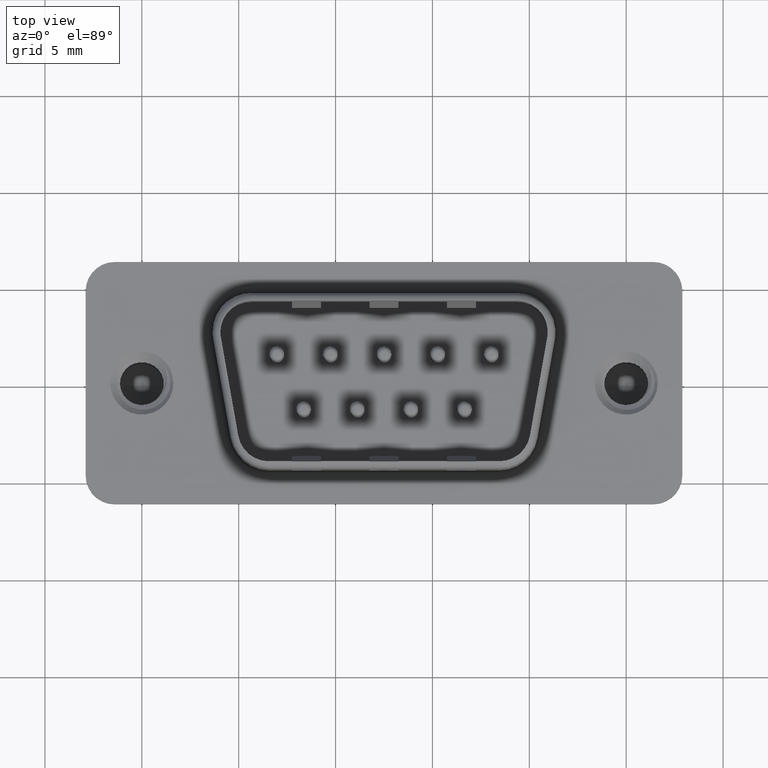
[diagram: clean part render]
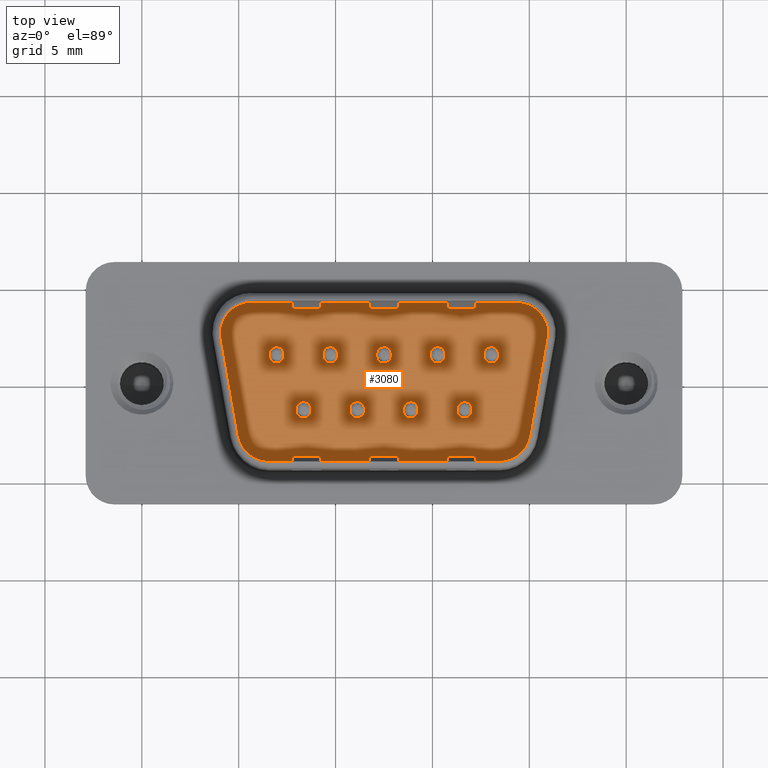
[diagram: same view with one face highlighted and labeled with its STEP entity id]
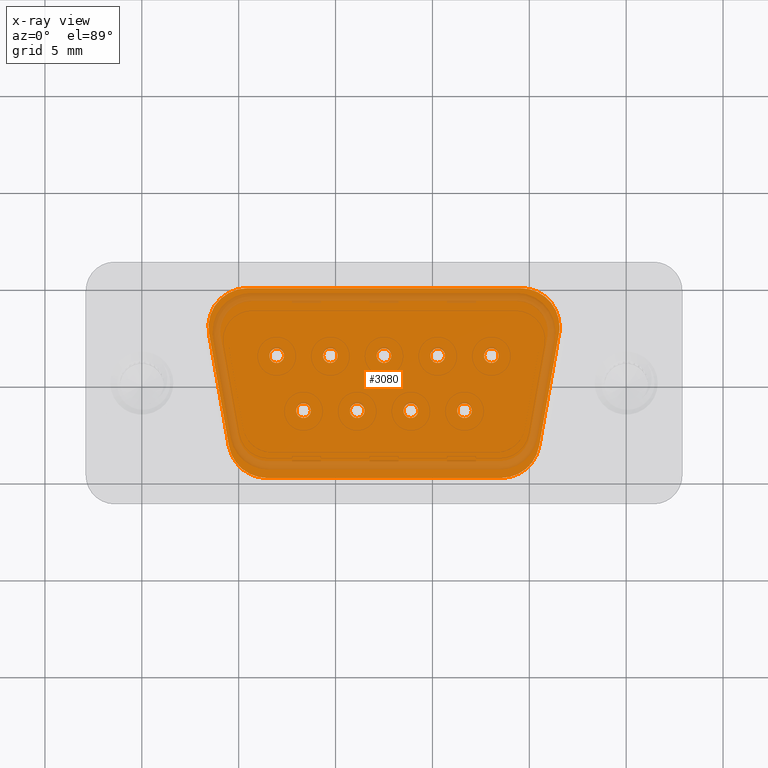
[diagram: x-ray of the same camera — body ghosted, the highlighted face saturated]
A machine part, top view. The second image highlights one B-rep face of the part: STEP entity #3080.
The next image is the same camera in x-ray: the body ghosted, the highlighted face saturated — about 13% of this face is hidden behind the body in this view.
In plain terms, the highlighted planar face has unit normal (0, 0, 1).
Its self-contained STEP definition (entity closure, byte-faithful):
#4 = VECTOR ( 'NONE', #262, 1000.000000000000000 ) ;
#6 = DIRECTION ( 'NONE',  ( -1.000000000000000000, 0.0000000000000000000, 0.0000000000000000000 ) ) ;
#20 = VERTEX_POINT ( 'NONE', #11100 ) ;
#163 = CARTESIAN_POINT ( 'NONE',  ( 21.53364394105523871, 2.552703644666141525, 0.0000000000000000000 ) ) ;
#233 = CARTESIAN_POINT ( 'NONE',  ( 11.49000000000000199, -1.424999999999995381, 0.0000000000000000000 ) ) ;
#262 = DIRECTION ( 'NONE',  ( 1.000000000000000000, 1.435712762696901416E-16, 0.0000000000000000000 ) ) ;
#325 = CARTESIAN_POINT ( 'NONE',  ( 18.03999999999999915, 1.415000000000004254, 0.0000000000000000000 ) ) ;
#333 = EDGE_LOOP ( 'NONE', ( #6587, #13192 ) ) ;
#340 = ORIENTED_EDGE ( 'NONE', *, *, #5016, .T. ) ;
#351 = ORIENTED_EDGE ( 'NONE', *, *, #11033, .F. ) ;
#454 = VERTEX_POINT ( 'NONE', #10677 ) ;
#456 = VERTEX_POINT ( 'NONE', #233 ) ;
#550 = AXIS2_PLACEMENT_3D ( 'NONE', #10307, #14897, #7719 ) ;
#682 = EDGE_CURVE ( 'NONE', #6301, #9457, #3037, .T. ) ;
#695 = CARTESIAN_POINT ( 'NONE',  ( 9.355000000000000426, 1.415000000000004254, 0.0000000000000000000 ) ) ;
#723 = DIRECTION ( 'NONE',  ( 0.0000000000000000000, 0.0000000000000000000, 1.000000000000000000 ) ) ;
#820 = CARTESIAN_POINT ( 'NONE',  ( 5.435971564969178438, 4.900000000000002132, 0.0000000000000000000 ) ) ;
#878 = DIRECTION ( 'NONE',  ( 1.000000000000000000, 0.0000000000000000000, -0.0000000000000000000 ) ) ;
#933 = VERTEX_POINT ( 'NONE', #14063 ) ;
#1074 = CARTESIAN_POINT ( 'NONE',  ( 12.87500000000000178, 1.415000000000004254, 0.0000000000000000000 ) ) ;
#1093 = ORIENTED_EDGE ( 'NONE', *, *, #7700, .F. ) ;
#1164 = CARTESIAN_POINT ( 'NONE',  ( 16.65500000000000469, -1.424999999999995381, 0.0000000000000000000 ) ) ;
#1195 = EDGE_CURVE ( 'NONE', #13666, #14032, #12483, .T. ) ;
#1222 = VERTEX_POINT ( 'NONE', #1236 ) ;
#1236 = CARTESIAN_POINT ( 'NONE',  ( 4.489052547053867137, -3.247296355333864959, 0.0000000000000000000 ) ) ;
#1301 = AXIS2_PLACEMENT_3D ( 'NONE', #9402, #5963, #9470 ) ;
#1355 = VERTEX_POINT ( 'NONE', #5113 ) ;
#1361 = EDGE_CURVE ( 'NONE', #9457, #6301, #13541, .T. ) ;
#1474 = AXIS2_PLACEMENT_3D ( 'NONE', #11156, #9935, #7651 ) ;
#1480 = EDGE_CURVE ( 'NONE', #6226, #454, #11102, .T. ) ;
#1527 = EDGE_LOOP ( 'NONE', ( #4411, #2484 ) ) ;
#1541 = AXIS2_PLACEMENT_3D ( 'NONE', #12027, #9657, #9588 ) ;
#1562 = EDGE_CURVE ( 'NONE', #12511, #12587, #3774, .T. ) ;
#1572 = DIRECTION ( 'NONE',  ( 1.000000000000000000, 0.0000000000000000000, 0.0000000000000000000 ) ) ;
#1613 = DIRECTION ( 'NONE',  ( 0.1736481776669314969, -0.9848077530122079093, 0.0000000000000000000 ) ) ;
#1782 = CARTESIAN_POINT ( 'NONE',  ( 6.458668053078283400, -2.900000000000002576, 0.0000000000000000000 ) ) ;
#2000 = CIRCLE ( 'NONE', #12476, 0.3750000000000003331 ) ;
#2015 = CIRCLE ( 'NONE', #6861, 0.3750000000000003331 ) ;
#2181 = AXIS2_PLACEMENT_3D ( 'NONE', #10296, #4497, #12656 ) ;
#2223 = CARTESIAN_POINT ( 'NONE',  ( 19.56402843503082067, 2.900000000000004352, 0.0000000000000000000 ) ) ;
#2277 = CIRCLE ( 'NONE', #11311, 0.3750000000000003331 ) ;
#2386 = CIRCLE ( 'NONE', #9945, 0.3750000000000003331 ) ;
#2393 = EDGE_CURVE ( 'NONE', #7326, #4948, #5927, .T. ) ;
#2484 = ORIENTED_EDGE ( 'NONE', *, *, #1195, .F. ) ;
#2567 = CARTESIAN_POINT ( 'NONE',  ( 20.51094745294614086, -3.247296355333861850, 0.0000000000000000000 ) ) ;
#2610 = EDGE_CURVE ( 'NONE', #2883, #7138, #4702, .T. ) ;
#2623 = CARTESIAN_POINT ( 'NONE',  ( 15.27000000000000135, 1.415000000000004254, 0.0000000000000000000 ) ) ;
#2709 = EDGE_LOOP ( 'NONE', ( #1093, #9526 ) ) ;
#2765 = AXIS2_PLACEMENT_3D ( 'NONE', #11170, #723, #878 ) ;
#2883 = VERTEX_POINT ( 'NONE', #5977 ) ;
#2900 = AXIS2_PLACEMENT_3D ( 'NONE', #7209, #5844, #3792 ) ;
#2989 = CARTESIAN_POINT ( 'NONE',  ( 16.28000000000000114, -1.424999999999995381, 0.0000000000000000000 ) ) ;
#3024 = VERTEX_POINT ( 'NONE', #10865 ) ;
#3037 = CIRCLE ( 'NONE', #11551, 0.3750000000000003331 ) ;
#3080 = ADVANCED_FACE ( 'NONE', ( #7254, #11104, #4895, #9570, #14225, #3769, #4979, #14298, #6504, #11327 ), #6662, .T. ) ;
#3132 = EDGE_LOOP ( 'NONE', ( #14317, #3806 ) ) ;
#3225 = AXIS2_PLACEMENT_3D ( 'NONE', #1164, #12976, #5964 ) ;
#3230 = EDGE_CURVE ( 'NONE', #3024, #11733, #13492, .T. ) ;
#3282 = EDGE_CURVE ( 'NONE', #6084, #8965, #7879, .T. ) ;
#3303 = EDGE_CURVE ( 'NONE', #3743, #1355, #11545, .T. ) ;
#3380 = CARTESIAN_POINT ( 'NONE',  ( 18.41499999999999915, 1.415000000000004254, 0.0000000000000000000 ) ) ;
#3381 = ORIENTED_EDGE ( 'NONE', *, *, #682, .F. ) ;
#3496 = EDGE_LOOP ( 'NONE', ( #13286, #13851 ) ) ;
#3551 = DIRECTION ( 'NONE',  ( 0.0000000000000000000, 0.0000000000000000000, 1.000000000000000000 ) ) ;
#3743 = VERTEX_POINT ( 'NONE', #2567 ) ;
#3769 = FACE_BOUND ( 'NONE', #13512, .T. ) ;
#3774 = CIRCLE ( 'NONE', #4259, 0.3750000000000003331 ) ;
#3792 = DIRECTION ( 'NONE',  ( -1.000000000000000000, 0.0000000000000000000, 0.0000000000000000000 ) ) ;
#3806 = ORIENTED_EDGE ( 'NONE', *, *, #9033, .F. ) ;
#4071 = CARTESIAN_POINT ( 'NONE',  ( 12.50000000000000000, 1.415000000000004254, 0.0000000000000000000 ) ) ;
#4130 = DIRECTION ( 'NONE',  ( -1.000000000000000000, 0.0000000000000000000, 0.0000000000000000000 ) ) ;
#4145 = CIRCLE ( 'NONE', #1474, 0.3750000000000003331 ) ;
#4259 = AXIS2_PLACEMENT_3D ( 'NONE', #14705, #6523, #8586 ) ;
#4260 = EDGE_CURVE ( 'NONE', #454, #6226, #4145, .T. ) ;
#4299 = EDGE_CURVE ( 'NONE', #1222, #12633, #6591, .T. ) ;
#4398 = EDGE_CURVE ( 'NONE', #1355, #6064, #14878, .T. ) ;
#4411 = ORIENTED_EDGE ( 'NONE', *, *, #12153, .F. ) ;
#4497 = DIRECTION ( 'NONE',  ( 0.0000000000000000000, 0.0000000000000000000, 1.000000000000000000 ) ) ;
#4546 = EDGE_LOOP ( 'NONE', ( #8946, #351 ) ) ;
#4602 = DIRECTION ( 'NONE',  ( 0.0000000000000000000, 0.0000000000000000000, 1.000000000000000000 ) ) ;
#4702 = CIRCLE ( 'NONE', #6671, 0.3750000000000012212 ) ;
#4709 = CARTESIAN_POINT ( 'NONE',  ( 17.66499999999999915, 1.415000000000004254, 0.0000000000000000000 ) ) ;
#4719 = ORIENTED_EDGE ( 'NONE', *, *, #14456, .T. ) ;
#4801 = DIRECTION ( 'NONE',  ( 0.1736481776669305255, 0.9848077530122081313, -0.0000000000000000000 ) ) ;
#4895 = FACE_BOUND ( 'NONE', #1527, .T. ) ;
#4899 = CIRCLE ( 'NONE', #550, 0.3750000000000003331 ) ;
#4948 = VERTEX_POINT ( 'NONE', #12724 ) ;
#4979 = FACE_BOUND ( 'NONE', #3132, .T. ) ;
#5016 = EDGE_CURVE ( 'NONE', #6064, #14133, #10442, .T. ) ;
#5034 = DIRECTION ( 'NONE',  ( 1.000000000000000000, 0.0000000000000000000, 0.0000000000000000000 ) ) ;
#5079 = ORIENTED_EDGE ( 'NONE', *, *, #1562, .F. ) ;
#5113 = CARTESIAN_POINT ( 'NONE',  ( 21.53364394105523871, 2.552703644666141969, 0.0000000000000000000 ) ) ;
#5157 = DIRECTION ( 'NONE',  ( 1.000000000000000000, 0.0000000000000000000, 0.0000000000000000000 ) ) ;
#5233 = LINE ( 'NONE', #820, #11166 ) ;
#5346 = AXIS2_PLACEMENT_3D ( 'NONE', #5973, #5891, #9189 ) ;
#5356 = CARTESIAN_POINT ( 'NONE',  ( 16.65500000000000469, -1.424999999999995381, 0.0000000000000000000 ) ) ;
#5363 = AXIS2_PLACEMENT_3D ( 'NONE', #2623, #3551, #1572 ) ;
#5371 = EDGE_LOOP ( 'NONE', ( #4719, #11112, #14770, #340, #6015, #11893, #12991, #14816, #6170 ) ) ;
#5424 = EDGE_CURVE ( 'NONE', #7138, #2883, #10213, .T. ) ;
#5587 = ORIENTED_EDGE ( 'NONE', *, *, #6972, .F. ) ;
#5844 = DIRECTION ( 'NONE',  ( 0.0000000000000000000, 0.0000000000000000000, 1.000000000000000000 ) ) ;
#5845 = AXIS2_PLACEMENT_3D ( 'NONE', #1782, #14673, #4130 ) ;
#5891 = DIRECTION ( 'NONE',  ( 0.0000000000000000000, 0.0000000000000000000, 1.000000000000000000 ) ) ;
#5902 = CARTESIAN_POINT ( 'NONE',  ( 6.458668053078278959, -4.900000000000001243, 0.0000000000000000000 ) ) ;
#5927 = CIRCLE ( 'NONE', #12526, 0.3750000000000003331 ) ;
#5963 = DIRECTION ( 'NONE',  ( 0.0000000000000000000, 0.0000000000000000000, 1.000000000000000000 ) ) ;
#5964 = DIRECTION ( 'NONE',  ( 1.000000000000000000, 0.0000000000000000000, 0.0000000000000000000 ) ) ;
#5973 = CARTESIAN_POINT ( 'NONE',  ( 6.960000000000000853, 1.415000000000004254, 0.0000000000000000000 ) ) ;
#5977 = CARTESIAN_POINT ( 'NONE',  ( 6.584999999999999964, 1.415000000000004254, 0.0000000000000000000 ) ) ;
#6015 = ORIENTED_EDGE ( 'NONE', *, *, #7705, .T. ) ;
#6020 = VERTEX_POINT ( 'NONE', #10674 ) ;
#6025 = CARTESIAN_POINT ( 'NONE',  ( 21.56402843503082423, 2.900000000000004352, 0.0000000000000000000 ) ) ;
#6064 = VERTEX_POINT ( 'NONE', #6025 ) ;
#6084 = VERTEX_POINT ( 'NONE', #13117 ) ;
#6118 = EDGE_CURVE ( 'NONE', #11733, #1222, #9767, .T. ) ;
#6165 = DIRECTION ( 'NONE',  ( 0.0000000000000000000, 0.0000000000000000000, 1.000000000000000000 ) ) ;
#6170 = ORIENTED_EDGE ( 'NONE', *, *, #9089, .T. ) ;
#6226 = VERTEX_POINT ( 'NONE', #695 ) ;
#6264 = CARTESIAN_POINT ( 'NONE',  ( 9.730000000000000426, 1.415000000000004254, 0.0000000000000000000 ) ) ;
#6301 = VERTEX_POINT ( 'NONE', #4709 ) ;
#6309 = VERTEX_POINT ( 'NONE', #9447 ) ;
#6487 = DIRECTION ( 'NONE',  ( 0.0000000000000000000, 0.0000000000000000000, 1.000000000000000000 ) ) ;
#6504 = FACE_BOUND ( 'NONE', #333, .T. ) ;
#6523 = DIRECTION ( 'NONE',  ( 0.0000000000000000000, 0.0000000000000000000, 1.000000000000000000 ) ) ;
#6587 = ORIENTED_EDGE ( 'NONE', *, *, #5424, .F. ) ;
#6591 = CIRCLE ( 'NONE', #5845, 2.000000000000000000 ) ;
#6662 = PLANE ( 'NONE',  #2765 ) ;
#6671 = AXIS2_PLACEMENT_3D ( 'NONE', #10966, #6165, #5157 ) ;
#6790 = DIRECTION ( 'NONE',  ( 0.0000000000000000000, 0.0000000000000000000, 1.000000000000000000 ) ) ;
#6799 = CIRCLE ( 'NONE', #2181, 0.3750000000000003331 ) ;
#6861 = AXIS2_PLACEMENT_3D ( 'NONE', #4071, #12242, #8573 ) ;
#6887 = VECTOR ( 'NONE', #4801, 999.9999999999998863 ) ;
#6972 = EDGE_CURVE ( 'NONE', #6020, #456, #6799, .T. ) ;
#7138 = VERTEX_POINT ( 'NONE', #12118 ) ;
#7209 = CARTESIAN_POINT ( 'NONE',  ( 19.56402843503082067, 2.900000000000004352, 0.0000000000000000000 ) ) ;
#7254 = FACE_BOUND ( 'NONE', #10983, .T. ) ;
#7326 = VERTEX_POINT ( 'NONE', #9063 ) ;
#7592 = DIRECTION ( 'NONE',  ( 1.000000000000000000, 0.0000000000000000000, 0.0000000000000000000 ) ) ;
#7651 = DIRECTION ( 'NONE',  ( 1.000000000000000000, 0.0000000000000000000, 0.0000000000000000000 ) ) ;
#7700 = EDGE_CURVE ( 'NONE', #8965, #6084, #2386, .T. ) ;
#7705 = EDGE_CURVE ( 'NONE', #14133, #3024, #5233, .T. ) ;
#7719 = DIRECTION ( 'NONE',  ( 1.000000000000000000, 0.0000000000000000000, 0.0000000000000000000 ) ) ;
#7740 = DIRECTION ( 'NONE',  ( 0.0000000000000000000, 0.0000000000000000000, 1.000000000000000000 ) ) ;
#7816 = CARTESIAN_POINT ( 'NONE',  ( 18.03999999999999915, 1.415000000000004254, 0.0000000000000000000 ) ) ;
#7879 = CIRCLE ( 'NONE', #1301, 0.3750000000000003331 ) ;
#7986 = DIRECTION ( 'NONE',  ( 0.0000000000000000000, 0.0000000000000000000, 1.000000000000000000 ) ) ;
#8102 = CIRCLE ( 'NONE', #1541, 2.000000000000001776 ) ;
#8141 = CARTESIAN_POINT ( 'NONE',  ( 3.466356058944761731, 2.552703644666139304, 0.0000000000000000000 ) ) ;
#8519 = AXIS2_PLACEMENT_3D ( 'NONE', #2223, #11675, #6 ) ;
#8573 = DIRECTION ( 'NONE',  ( 1.000000000000000000, 0.0000000000000000000, 0.0000000000000000000 ) ) ;
#8586 = DIRECTION ( 'NONE',  ( 1.000000000000000000, 0.0000000000000000000, 0.0000000000000000000 ) ) ;
#8710 = DIRECTION ( 'NONE',  ( 0.0000000000000000000, 0.0000000000000000000, 1.000000000000000000 ) ) ;
#8821 = DIRECTION ( 'NONE',  ( 1.000000000000000000, 0.0000000000000000000, 0.0000000000000000000 ) ) ;
#8914 = AXIS2_PLACEMENT_3D ( 'NONE', #325, #8710, #5034 ) ;
#8946 = ORIENTED_EDGE ( 'NONE', *, *, #2393, .F. ) ;
#8958 = CARTESIAN_POINT ( 'NONE',  ( 5.435971564969178438, 2.900000000000002576, 0.0000000000000000000 ) ) ;
#8965 = VERTEX_POINT ( 'NONE', #11571 ) ;
#9033 = EDGE_CURVE ( 'NONE', #6309, #20, #10013, .T. ) ;
#9063 = CARTESIAN_POINT ( 'NONE',  ( 8.720000000000002416, -1.424999999999995381, 0.0000000000000000000 ) ) ;
#9089 = EDGE_CURVE ( 'NONE', #12633, #933, #10629, .T. ) ;
#9189 = DIRECTION ( 'NONE',  ( 1.000000000000000000, 0.0000000000000000000, 0.0000000000000000000 ) ) ;
#9402 = CARTESIAN_POINT ( 'NONE',  ( 13.88500000000000156, -1.424999999999995381, 0.0000000000000000000 ) ) ;
#9447 = CARTESIAN_POINT ( 'NONE',  ( 14.89500000000000668, 1.415000000000004254, 0.0000000000000000000 ) ) ;
#9457 = VERTEX_POINT ( 'NONE', #3380 ) ;
#9470 = DIRECTION ( 'NONE',  ( 1.000000000000000000, 0.0000000000000000000, 0.0000000000000000000 ) ) ;
#9486 = DIRECTION ( 'NONE',  ( 0.0000000000000000000, 0.0000000000000000000, 1.000000000000000000 ) ) ;
#9526 = ORIENTED_EDGE ( 'NONE', *, *, #3282, .F. ) ;
#9570 = FACE_BOUND ( 'NONE', #4546, .T. ) ;
#9588 = DIRECTION ( 'NONE',  ( 1.000000000000000000, 0.0000000000000000000, 0.0000000000000000000 ) ) ;
#9657 = DIRECTION ( 'NONE',  ( 0.0000000000000000000, 0.0000000000000000000, 1.000000000000000000 ) ) ;
#9751 = CARTESIAN_POINT ( 'NONE',  ( 17.03000000000000469, -1.424999999999995381, 0.0000000000000000000 ) ) ;
#9767 = LINE ( 'NONE', #12063, #12183 ) ;
#9935 = DIRECTION ( 'NONE',  ( 0.0000000000000000000, 0.0000000000000000000, 1.000000000000000000 ) ) ;
#9945 = AXIS2_PLACEMENT_3D ( 'NONE', #11268, #12400, #7592 ) ;
#10013 = CIRCLE ( 'NONE', #11226, 0.3749999999999951150 ) ;
#10128 = DIRECTION ( 'NONE',  ( 1.000000000000000000, 0.0000000000000000000, 0.0000000000000000000 ) ) ;
#10213 = CIRCLE ( 'NONE', #5346, 0.3750000000000012212 ) ;
#10241 = DIRECTION ( 'NONE',  ( 1.000000000000000000, 0.0000000000000000000, 0.0000000000000000000 ) ) ;
#10296 = CARTESIAN_POINT ( 'NONE',  ( 11.11500000000000199, -1.424999999999995381, 0.0000000000000000000 ) ) ;
#10307 = CARTESIAN_POINT ( 'NONE',  ( 8.345000000000002416, -1.424999999999995381, 0.0000000000000000000 ) ) ;
#10416 = EDGE_CURVE ( 'NONE', #20, #6309, #11939, .T. ) ;
#10442 = CIRCLE ( 'NONE', #2900, 2.000000000000001776 ) ;
#10553 = EDGE_CURVE ( 'NONE', #12587, #12511, #2015, .T. ) ;
#10629 = LINE ( 'NONE', #5902, #4 ) ;
#10674 = CARTESIAN_POINT ( 'NONE',  ( 10.74000000000000199, -1.424999999999995381, 0.0000000000000000000 ) ) ;
#10677 = CARTESIAN_POINT ( 'NONE',  ( 10.10500000000000043, 1.415000000000004254, 0.0000000000000000000 ) ) ;
#10821 = CARTESIAN_POINT ( 'NONE',  ( 12.12500000000000000, 1.415000000000004254, 0.0000000000000000000 ) ) ;
#10865 = CARTESIAN_POINT ( 'NONE',  ( 5.435971564969178438, 4.900000000000003020, 0.0000000000000000000 ) ) ;
#10966 = CARTESIAN_POINT ( 'NONE',  ( 6.960000000000000853, 1.415000000000004254, 0.0000000000000000000 ) ) ;
#10983 = EDGE_LOOP ( 'NONE', ( #14306, #5587 ) ) ;
#11000 = DIRECTION ( 'NONE',  ( 1.000000000000000000, 0.0000000000000000000, 0.0000000000000000000 ) ) ;
#11033 = EDGE_CURVE ( 'NONE', #4948, #7326, #4899, .T. ) ;
#11060 = CARTESIAN_POINT ( 'NONE',  ( 19.56402843503082067, 4.900000000000003908, 0.0000000000000000000 ) ) ;
#11100 = CARTESIAN_POINT ( 'NONE',  ( 15.64499999999999602, 1.415000000000004254, 0.0000000000000000000 ) ) ;
#11102 = CIRCLE ( 'NONE', #13770, 0.3750000000000003331 ) ;
#11104 = FACE_BOUND ( 'NONE', #2709, .T. ) ;
#11112 = ORIENTED_EDGE ( 'NONE', *, *, #3303, .T. ) ;
#11156 = CARTESIAN_POINT ( 'NONE',  ( 9.730000000000000426, 1.415000000000004254, 0.0000000000000000000 ) ) ;
#11166 = VECTOR ( 'NONE', #14392, 1000.000000000000000 ) ;
#11170 = CARTESIAN_POINT ( 'NONE',  ( 18.54133194692172282, -2.900000000000001243, 0.0000000000000000000 ) ) ;
#11226 = AXIS2_PLACEMENT_3D ( 'NONE', #15005, #4602, #10128 ) ;
#11268 = CARTESIAN_POINT ( 'NONE',  ( 13.88500000000000156, -1.424999999999995381, 0.0000000000000000000 ) ) ;
#11311 = AXIS2_PLACEMENT_3D ( 'NONE', #12138, #9486, #11000 ) ;
#11327 = FACE_OUTER_BOUND ( 'NONE', #5371, .T. ) ;
#11545 = LINE ( 'NONE', #163, #6887 ) ;
#11551 = AXIS2_PLACEMENT_3D ( 'NONE', #7816, #7740, #8821 ) ;
#11571 = CARTESIAN_POINT ( 'NONE',  ( 14.26000000000000156, -1.424999999999995381, 0.0000000000000000000 ) ) ;
#11675 = DIRECTION ( 'NONE',  ( 0.0000000000000000000, 0.0000000000000000000, 1.000000000000000000 ) ) ;
#11733 = VERTEX_POINT ( 'NONE', #8141 ) ;
#11893 = ORIENTED_EDGE ( 'NONE', *, *, #3230, .T. ) ;
#11939 = CIRCLE ( 'NONE', #5363, 0.3749999999999951150 ) ;
#11990 = DIRECTION ( 'NONE',  ( 1.000000000000000000, 0.0000000000000000000, 0.0000000000000000000 ) ) ;
#12027 = CARTESIAN_POINT ( 'NONE',  ( 18.54133194692172282, -2.900000000000001243, 0.0000000000000000000 ) ) ;
#12063 = CARTESIAN_POINT ( 'NONE',  ( 3.466356058944761731, 2.552703644666139304, 0.0000000000000000000 ) ) ;
#12118 = CARTESIAN_POINT ( 'NONE',  ( 7.335000000000001741, 1.415000000000004254, 0.0000000000000000000 ) ) ;
#12138 = CARTESIAN_POINT ( 'NONE',  ( 11.11500000000000199, -1.424999999999995381, 0.0000000000000000000 ) ) ;
#12153 = EDGE_CURVE ( 'NONE', #14032, #13666, #2000, .T. ) ;
#12183 = VECTOR ( 'NONE', #1613, 1000.000000000000000 ) ;
#12242 = DIRECTION ( 'NONE',  ( 0.0000000000000000000, 0.0000000000000000000, 1.000000000000000000 ) ) ;
#12400 = DIRECTION ( 'NONE',  ( 0.0000000000000000000, 0.0000000000000000000, 1.000000000000000000 ) ) ;
#12461 = DIRECTION ( 'NONE',  ( 0.0000000000000000000, 0.0000000000000000000, 1.000000000000000000 ) ) ;
#12476 = AXIS2_PLACEMENT_3D ( 'NONE', #5356, #6790, #12537 ) ;
#12483 = CIRCLE ( 'NONE', #3225, 0.3750000000000003331 ) ;
#12511 = VERTEX_POINT ( 'NONE', #1074 ) ;
#12526 = AXIS2_PLACEMENT_3D ( 'NONE', #13517, #7986, #12867 ) ;
#12537 = DIRECTION ( 'NONE',  ( 1.000000000000000000, 0.0000000000000000000, 0.0000000000000000000 ) ) ;
#12587 = VERTEX_POINT ( 'NONE', #10821 ) ;
#12633 = VERTEX_POINT ( 'NONE', #13175 ) ;
#12656 = DIRECTION ( 'NONE',  ( 1.000000000000000000, 0.0000000000000000000, 0.0000000000000000000 ) ) ;
#12724 = CARTESIAN_POINT ( 'NONE',  ( 7.970000000000001528, -1.424999999999995381, 0.0000000000000000000 ) ) ;
#12867 = DIRECTION ( 'NONE',  ( 1.000000000000000000, 0.0000000000000000000, 0.0000000000000000000 ) ) ;
#12976 = DIRECTION ( 'NONE',  ( 0.0000000000000000000, 0.0000000000000000000, 1.000000000000000000 ) ) ;
#12991 = ORIENTED_EDGE ( 'NONE', *, *, #6118, .T. ) ;
#13117 = CARTESIAN_POINT ( 'NONE',  ( 13.51000000000000156, -1.424999999999995381, 0.0000000000000000000 ) ) ;
#13175 = CARTESIAN_POINT ( 'NONE',  ( 6.458668053078278959, -4.900000000000001243, 0.0000000000000000000 ) ) ;
#13192 = ORIENTED_EDGE ( 'NONE', *, *, #2610, .F. ) ;
#13286 = ORIENTED_EDGE ( 'NONE', *, *, #4260, .F. ) ;
#13492 = CIRCLE ( 'NONE', #14464, 2.000000000000000888 ) ;
#13512 = EDGE_LOOP ( 'NONE', ( #5079, #14688 ) ) ;
#13517 = CARTESIAN_POINT ( 'NONE',  ( 8.345000000000002416, -1.424999999999995381, 0.0000000000000000000 ) ) ;
#13541 = CIRCLE ( 'NONE', #8914, 0.3750000000000003331 ) ;
#13666 = VERTEX_POINT ( 'NONE', #2989 ) ;
#13770 = AXIS2_PLACEMENT_3D ( 'NONE', #6264, #6487, #11990 ) ;
#13851 = ORIENTED_EDGE ( 'NONE', *, *, #1480, .F. ) ;
#14032 = VERTEX_POINT ( 'NONE', #9751 ) ;
#14063 = CARTESIAN_POINT ( 'NONE',  ( 18.54133194692172282, -4.899999999999999467, 0.0000000000000000000 ) ) ;
#14128 = EDGE_LOOP ( 'NONE', ( #14962, #3381 ) ) ;
#14133 = VERTEX_POINT ( 'NONE', #11060 ) ;
#14225 = FACE_BOUND ( 'NONE', #3496, .T. ) ;
#14298 = FACE_BOUND ( 'NONE', #14128, .T. ) ;
#14306 = ORIENTED_EDGE ( 'NONE', *, *, #14943, .F. ) ;
#14317 = ORIENTED_EDGE ( 'NONE', *, *, #10416, .F. ) ;
#14392 = DIRECTION ( 'NONE',  ( -1.000000000000000000, -1.227857087447609065E-16, -0.0000000000000000000 ) ) ;
#14456 = EDGE_CURVE ( 'NONE', #933, #3743, #8102, .T. ) ;
#14464 = AXIS2_PLACEMENT_3D ( 'NONE', #8958, #12461, #10241 ) ;
#14673 = DIRECTION ( 'NONE',  ( 0.0000000000000000000, 0.0000000000000000000, 1.000000000000000000 ) ) ;
#14688 = ORIENTED_EDGE ( 'NONE', *, *, #10553, .F. ) ;
#14705 = CARTESIAN_POINT ( 'NONE',  ( 12.50000000000000000, 1.415000000000004254, 0.0000000000000000000 ) ) ;
#14770 = ORIENTED_EDGE ( 'NONE', *, *, #4398, .T. ) ;
#14816 = ORIENTED_EDGE ( 'NONE', *, *, #4299, .T. ) ;
#14878 = CIRCLE ( 'NONE', #8519, 2.000000000000001776 ) ;
#14897 = DIRECTION ( 'NONE',  ( 0.0000000000000000000, 0.0000000000000000000, 1.000000000000000000 ) ) ;
#14943 = EDGE_CURVE ( 'NONE', #456, #6020, #2277, .T. ) ;
#14962 = ORIENTED_EDGE ( 'NONE', *, *, #1361, .F. ) ;
#15005 = CARTESIAN_POINT ( 'NONE',  ( 15.27000000000000135, 1.415000000000004254, 0.0000000000000000000 ) ) ;